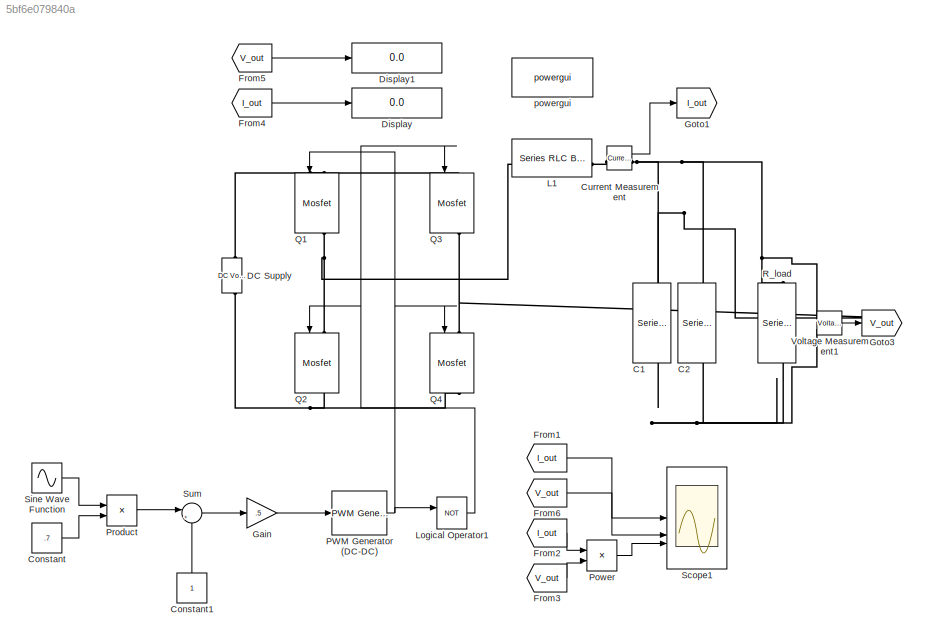
MODEL slx_5bf6e079840a
KIND model
CONFIG AbsTol = auto
CONFIG EnableMultiTasking = off
CONFIG FixedStep = auto
CONFIG MaxStep = 1e-7
CONFIG MinStep = 1e-8
CONFIG RelTol = 1e-3
CONFIG SampleTimeConstraint = Unconstrained
CONFIG SolverName = ode45
CONFIG StartTime = 0.0
CONFIG StopTime = 0.1
BLOCK [Reference] C1  REF=spsSeriesRLCBranchLib/Series RLC Branch
  LibrarySourceBlock = sps_lib/Passives/Series RLC Branch
  NameLocation = left
  SourceBlock = spsSeriesRLCBranchLib/Series RLC Branch
  SourceType = Series RLC Branch
BLOCK [Reference] C2  REF=spsSeriesRLCBranchLib/Series RLC Branch
  LibrarySourceBlock = sps_lib/Passives/Series RLC Branch
  NameLocation = left
  SourceBlock = spsSeriesRLCBranchLib/Series RLC Branch
  SourceType = Series RLC Branch
BLOCK [Constant] Constant
  Value = .7
BLOCK [Constant] Constant1
  NameLocation = right
BLOCK [Reference] Current Measurement  REF=spsCurrentMeasurementLib/Current Measurement
  LibrarySourceBlock = sps_lib/Sensors and Measurements/Current Measurement
  SourceBlock = spsCurrentMeasurementLib/Current Measurement
  SourceType = Current Measurement
  UserDataPersistent = on
BLOCK [Reference] DC Supply  REF=spsDCVoltageSourceLib/DC Voltage Source
  LibrarySourceBlock = sps_lib/Sources/DC Voltage Source
  SourceBlock = spsDCVoltageSourceLib/DC Voltage Source
  SourceType = DC Voltage Source
BLOCK [Display] Display
  Decimation = 1
BLOCK [Display] Display1
  Decimation = 1
BLOCK [From] From1
  GotoTag = I_out
BLOCK [From] From2
  GotoTag = I_out
BLOCK [From] From3
  GotoTag = V_out
BLOCK [From] From4
  GotoTag = I_out
BLOCK [From] From5
  GotoTag = V_out
BLOCK [From] From6
  GotoTag = V_out
BLOCK [Gain] Gain
  Gain = .5
BLOCK [Goto] Goto1
  GotoTag = I_out
BLOCK [Goto] Goto3
  GotoTag = V_out
BLOCK [Reference] L1  REF=spsSeriesRLCBranchLib/Series RLC Branch
  LibrarySourceBlock = sps_lib/Passives/Series RLC Branch
  SourceBlock = spsSeriesRLCBranchLib/Series RLC Branch
  SourceType = Series RLC Branch
BLOCK [Logic] Logical Operator1
  AllPortsSameDT = off
  Operator = NOT
  OutDataTypeStr = boolean
BLOCK [Reference] PWM Generator (DC-DC)  REF=spsPWMGeneratorDCDCLib/PWM Generator
(DC-DC)
  LibrarySourceBlock = sps_lib/Power Electronics/Power Electronics Control/PWM Generator\n(DC-DC)
  SourceBlock = spsPWMGeneratorDCDCLib/PWM Generator\n(DC-DC)
  SourceType = PWM Generator (DC-DC)
BLOCK [Product] Power
BLOCK [Product] Product
BLOCK [Reference] Q1  REF=spsMosfetLib/Mosfet
  LibrarySourceBlock = sps_lib/Power Electronics/Mosfet
  NameLocation = left
  SourceBlock = spsMosfetLib/Mosfet
  SourceType = Mosfet
BLOCK [Reference] Q2  REF=spsMosfetLib/Mosfet
  LibrarySourceBlock = sps_lib/Power Electronics/Mosfet
  NameLocation = left
  SourceBlock = spsMosfetLib/Mosfet
  SourceType = Mosfet
BLOCK [Reference] Q3  REF=spsMosfetLib/Mosfet
  LibrarySourceBlock = sps_lib/Power Electronics/Mosfet
  NameLocation = left
  SourceBlock = spsMosfetLib/Mosfet
  SourceType = Mosfet
BLOCK [Reference] Q4  REF=spsMosfetLib/Mosfet
  LibrarySourceBlock = sps_lib/Power Electronics/Mosfet
  NameLocation = left
  SourceBlock = spsMosfetLib/Mosfet
  SourceType = Mosfet
BLOCK [Reference] R_load  REF=spsSeriesRLCBranchLib/Series RLC Branch
  LibrarySourceBlock = sps_lib/Passives/Series RLC Branch
  NameLocation = left
  SourceBlock = spsSeriesRLCBranchLib/Series RLC Branch
  SourceType = Series RLC Branch
BLOCK [Scope] Scope1
  Floating = off
  NumInputPorts = 3
  ScopeSpecificationString = Simulink.scopes.TimeScopeBlockCfg('CurrentConfiguration', extmgr.ConfigurationSet(extmgr.Configuration('Core','General UI',true),extmgr.Configuration('Core','Source UI',true),extmgr.Configuration('Sources','WiredSimulink',true),extmgr.Configuration('Visuals','Time Domain',true,'SerializedDisplays',{struct('MinYLimReal','-94.15198','MaxYLimReal','550.19694','YLabelReal','','MinYLimMag','0.00000','M...<+1525ch>
BLOCK [Sin] Sine Wave Function
  Frequency = 2*pi*60
  SampleTime = 0
BLOCK [Sum] Sum
  Inputs = |++
BLOCK [Reference] Voltage Measurement1  REF=spsVoltageMeasurementLib/Voltage Measurement
  LibrarySourceBlock = sps_lib/Sensors and Measurements/Voltage Measurement
  SourceBlock = spsVoltageMeasurementLib/Voltage Measurement
  SourceType = Voltage Measurement
  UserDataPersistent = on
BLOCK [Reference] powergui  REF=sps_lib/powergui
  LibrarySourceBlock = sps_lib/powergui
  Priority = 1
  SourceBlock = sps_lib/powergui
  SourceType = PSB option menu block
LINE Constant1:1 -> Sum:2
LINE Constant:1 -> Product:2
LINE Current Measurement:1 -> Goto1:1
LINE From1:1 -> Scope1:1
LINE From2:1 -> Power:1
LINE From3:1 -> Power:2
LINE From4:1 -> Display:1
LINE From5:1 -> Display1:1
LINE From6:1 -> Scope1:2
LINE Gain:1 -> PWM Generator (DC-DC):1
NET Logical Operator1:1 -> Q2:1, Q3:1
NET PWM Generator (DC-DC):1 -> Logical Operator1:1, Q1:1, Q4:1
LINE Power:1 -> Scope1:3
LINE Product:1 -> Sum:1
LINE Sine Wave Function:1 -> Product:1
LINE Sum:1 -> Gain:1
LINE Voltage Measurement1:1 -> Goto3:1
PNET net1: C1:LConn1 -- C2:LConn1 -- Current Measurement:RConn1 -- R_load:LConn1 -- Voltage Measurement1:LConn1
PNET net2: C1:RConn1 -- C2:RConn1 -- Q3:RConn1 -- Q4:LConn1 -- R_load:RConn1 -- Voltage Measurement1:LConn2
PLINE Current Measurement:LConn1 -- L1:RConn1
PNET net3: DC Supply:LConn1 -- Q2:RConn1 -- Q4:RConn1
PNET net4: DC Supply:RConn1 -- Q1:LConn1 -- Q3:LConn1
PNET net5: L1:LConn1 -- Q1:RConn1 -- Q2:LConn1
note: NET lines group one-source signal fan-out (src -> all destinations, sorted); 1:1 wires keep LINE; PNET lines group multi-terminal physical nets as a canonical sorted terminal list (undirected conserving connections); 2-terminal nets keep the pairwise PLINE form
